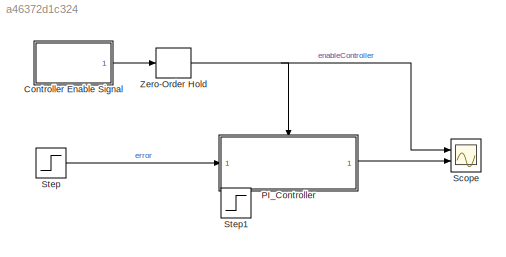
MODEL slx_a46372d1c324
KIND model
CONFIG AbsTol = auto
CONFIG EnableMultiTasking = on
CONFIG FixedStep = Ts
CONFIG MaxStep = auto
CONFIG MinStep = auto
CONFIG PreLoadFcn = etc_PI_data;
CONFIG RelTol = 1e-3
CONFIG SampleTimeConstraint = Unconstrained
CONFIG Solver = FixedStepDiscrete
CONFIG SolverName = FixedStepDiscrete
CONFIG StartTime = 0.0
CONFIG StopTime = 20
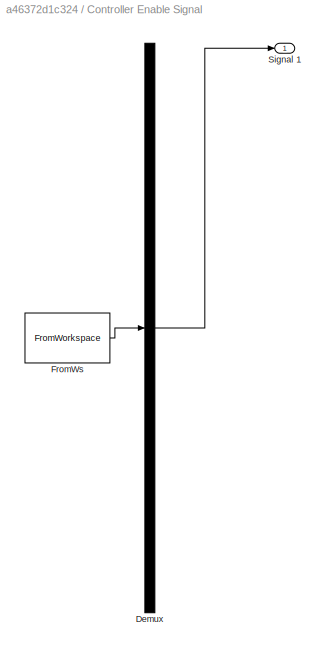
BLOCK [SubSystem] Controller Enable Signal
  ClipboardFcn = sigbuilder_block('clipboard');
  CloseFcn = sigbuilder_block('close');
  ContinueFcn = sigbuilder_block('continue')
  CopyFcn = sigbuilder_block('copy');
  DeleteFcn = sigbuilder_block('delete');
  LoadFcn = sigbuilder_block('load');
  MaskHideContents = on
  ModelCloseFcn = sigbuilder_block('modelClose');
  NameChangeFcn = sigbuilder_block('namechange');
  OpenFcn = sigbuilder_block('open',[437.6 199.2 550.4 400 ]);
  PauseFcn = sigbuilder_block('pause')
  Ports = [0, 1]
  PreSaveFcn = sigbuilder_block('preSave');
  RequestExecContextInheritance = off
  StartFcn = sigbuilder_block('start');
  StopFcn = sigbuilder_block('stop');
  Tag = STV Subsys
BLOCK [Demux] Controller Enable Signal/Demux
  Outputs = 1
  Ports = [1, 1]
  Tag = STV Demux
BLOCK [FromWorkspace] Controller Enable Signal/FromWs
  SampleTime = 0
  Tag = STV FromWs
  VariableName = tuvar
  ZeroCross = on
BLOCK [Outport] Controller Enable Signal/Signal 1
  IconDisplay = Port number
  Tag = STV Outport
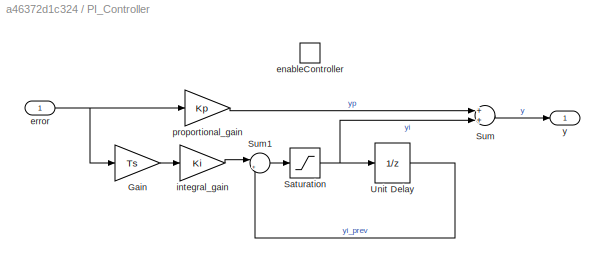
BLOCK [SubSystem] PI_Controller
  Ports = [1, 1, 1]
  RequestExecContextInheritance = off
BLOCK [Gain] PI_Controller/Gain
  Gain = Ts
BLOCK [Saturate] PI_Controller/Saturation
  AttributesFormatString = Max: %<UpperLimit>\nMin: %<LowerLimit>
  InputPortMap = u0
  LowerLimit = -1
  Ports = [1, 1]
  UpperLimit = 1
BLOCK [Sum] PI_Controller/Sum
  Ports = [2, 1]
BLOCK [Sum] PI_Controller/Sum1
  IconShape = round
  Inputs = |++
  Ports = [2, 1]
BLOCK [UnitDelay] PI_Controller/Unit Delay
  AttributesFormatString = yi0 = %<X0>\nTs = %<SampleTime>
  SampleTime = -1
BLOCK [EnablePort] PI_Controller/enableController
  AttributesFormatString = States when enabling: %<StatesWhenEnabling>
  Ports = []
  StatesWhenEnabling = reset
BLOCK [Inport] PI_Controller/error
  AttributesFormatString = Ts = %<SampleTime>
  IconDisplay = Port number
  SampleTime = Ts
BLOCK [Gain] PI_Controller/integral_gain
  Gain = Ki
BLOCK [Gain] PI_Controller/proportional_gain
  Gain = Kp
BLOCK [Outport] PI_Controller/y
  AttributesFormatString = Output when\ndisabled: %<OutputWhenDisabled>
  IconDisplay = Port number
  InitialOutput = [0]
  OutputWhenDisabled = reset
BLOCK [Scope] Scope
  Floating = off
  NumInputPorts = 2
  Ports = [2]
  ScopeSpecificationString = Simulink.scopes.TimeScopeBlockCfg('CurrentConfiguration', extmgr.ConfigurationSet(extmgr.Configuration('Core','General UI',true),extmgr.Configuration('Core','Source UI',true),extmgr.Configuration('Sources','WiredSimulink',true,'DataLoggingSaveFormat','StructureWithTime','DataLoggingLimitDataPoints',true,'DataLoggingDecimation','1','DataLoggingDecimateData',true),extmgr.Configuration('Visuals','Tim...<+2725ch>
BLOCK [Step] Step
  SampleTime = 0
BLOCK [Step] Step1
  IOType = siggen
  SampleTime = 0
BLOCK [ZeroOrderHold] Zero-Order Hold
  AttributesFormatString = Ts =%<SampleTime>
  SampleTime = Ts
LINE Controller Enable Signal/Demux:1 -> Controller Enable Signal/Signal 1:1
LINE Controller Enable Signal/FromWs:1 -> Controller Enable Signal/Demux:1
LINE Controller Enable Signal:1 -> Zero-Order Hold:1
LINE PI_Controller/Gain:1 -> PI_Controller/integral_gain:1
NET PI_Controller/Saturation:1 -> PI_Controller/Sum:2, PI_Controller/Unit Delay:1
LINE PI_Controller/Sum1:1 -> PI_Controller/Saturation:1
LINE PI_Controller/Sum:1 -> PI_Controller/y:1
LINE PI_Controller/Unit Delay:1 -> PI_Controller/Sum1:2
NET PI_Controller/error:1 -> PI_Controller/Gain:1, PI_Controller/proportional_gain:1
LINE PI_Controller/integral_gain:1 -> PI_Controller/Sum1:1
LINE PI_Controller/proportional_gain:1 -> PI_Controller/Sum:1
LINE PI_Controller:1 -> Scope:2
LINE Step:1 -> PI_Controller:1
NET Zero-Order Hold:1 -> PI_Controller:enable, Scope:1
note: NET lines group one-source signal fan-out (src -> all destinations, sorted); 1:1 wires keep LINE
